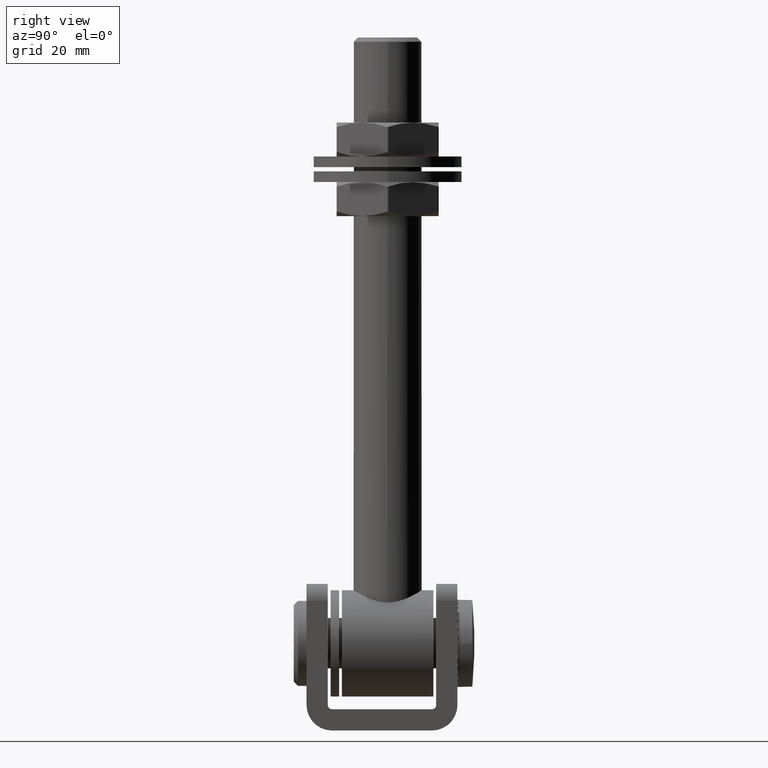
[diagram: clean part render]
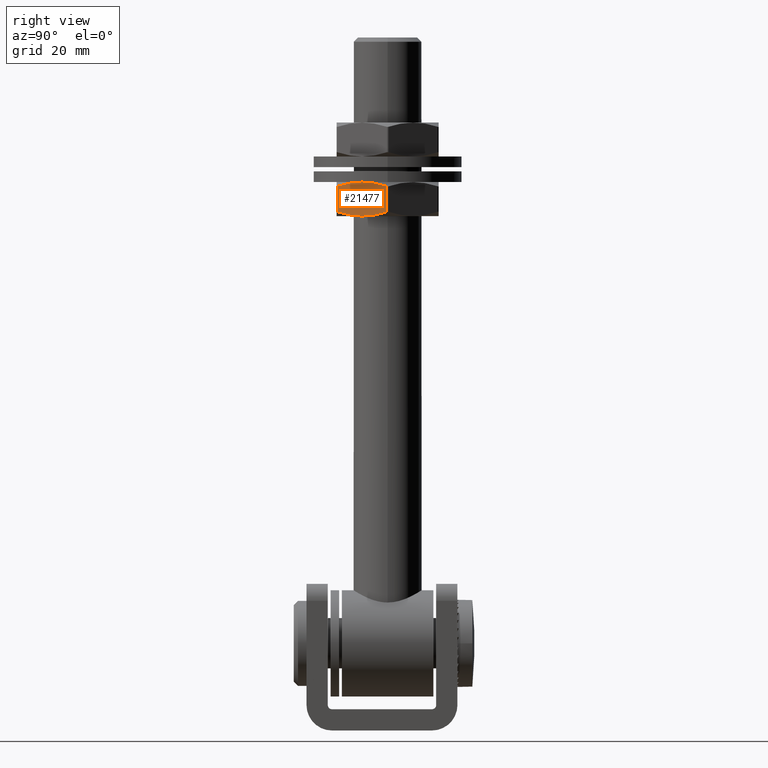
[diagram: same view with one face highlighted and labeled with its STEP entity id]
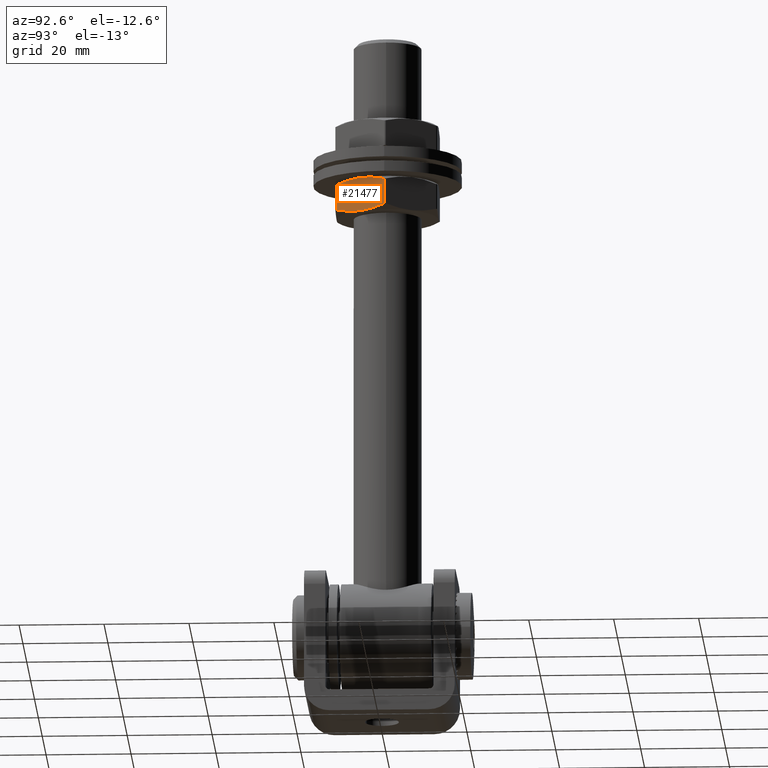
[diagram: same view with one face highlighted and labeled with its STEP entity id]
A machine part, right view. The second image highlights one B-rep face of the part: STEP entity #21477.
A second angle (auxiliary view) of the same face is appended — the face is thin or edge-on in the first view.
In plain terms, the highlighted planar face has unit normal (-0.866, 0.5, -0).
Its self-contained STEP definition (entity closure, byte-faithful):
#64 = DIRECTION ( 'NONE',  ( -7.395570986446863062E-32, 1.000000000000000000, 4.930380657631262477E-32 ) ) ;
#706 = DIRECTION ( 'NONE',  ( 7.395570986446863062E-32, -1.000000000000000000, -4.930380657631262477E-32 ) ) ;
#933 = CARTESIAN_POINT ( 'NONE',  ( 10.11082040635865376, 4.000000000000165201, 6.487545349982087650 ) ) ;
#1059 = ORIENTED_EDGE ( 'NONE', *, *, #21412, .T. ) ;
#1109 = EDGE_LOOP ( 'NONE', ( #1059, #16943, #4886, #14828, #10303, #13698 ) ) ;
#1771 = CARTESIAN_POINT ( 'NONE',  ( 10.39230484541297450, 4.000000000000003553, 5.999999999999852562 ) ) ;
#1833 = VERTEX_POINT ( 'NONE', #7449 ) ;
#1865 = CARTESIAN_POINT ( 'NONE',  ( 13.16874182127976134, 3.313954435900914763, 1.191070093785827622 ) ) ;
#2037 = DIRECTION ( 'NONE',  ( -0.8660254037844382635, -4.930380657631420123E-32, -0.5000000000000006661 ) ) ;
#2118 = VERTEX_POINT ( 'NONE', #5523 ) ;
#2446 = B_SPLINE_CURVE_WITH_KNOTS ( 'NONE', 3,
 ( #20539, #17107, #5284, #3383, #10192, #3466 ),
 .UNSPECIFIED., .F., .F.,
 ( 4, 2, 4 ),
 ( 0.0002976420579474735686, 0.003654043546377319304, 0.007010445034807165528 ),
 .UNSPECIFIED. ) ;
#3011 = VERTEX_POINT ( 'NONE', #15383 ) ;
#3383 = CARTESIAN_POINT ( 'NONE',  ( 9.268740651451105705, -3.906434174578529817, 7.946070269507098160 ) ) ;
#3466 = CARTESIAN_POINT ( 'NONE',  ( 10.39230484541296384, -4.000000000000003553, 5.999999999999877431 ) ) ;
#4886 = ORIENTED_EDGE ( 'NONE', *, *, #9350, .T. ) ;
#5184 = CARTESIAN_POINT ( 'NONE',  ( 10.95658457648159967, -3.976788126677650137, 5.022638836107818250 ) ) ;
#5284 = CARTESIAN_POINT ( 'NONE',  ( 8.163129901978846803, -3.562901251027212890, 9.861044260987355869 ) ) ;
#5523 = CARTESIAN_POINT ( 'NONE',  ( 10.39230484541297450, 4.000000000000003553, 5.999999999999852562 ) ) ;
#5628 = DIRECTION ( 'NONE',  ( -0.5000000000000006661, 1.824240843323626234E-30, 0.8660254037844382635 ) ) ;
#5816 = CARTESIAN_POINT ( 'NONE',  ( 8.990347189129618499, 3.820028020092934185, 8.428261890742929197 ) ) ;
#6616 = FACE_OUTER_BOUND ( 'NONE', #1109, .T. ) ;
#7063 = CARTESIAN_POINT ( 'NONE',  ( 10.39230484541296384, -4.000000000000003553, 5.999999999999877431 ) ) ;
#7449 = CARTESIAN_POINT ( 'NONE',  ( 13.71206889325364564, 3.010220883462255692, 0.2499999999994474975 ) ) ;
#7907 = VERTEX_POINT ( 'NONE', #21488 ) ;
#7917 = CARTESIAN_POINT ( 'NONE',  ( 9.268373994161228424, 3.886760395136575674, 7.946705338562133569 ) ) ;
#8022 = CARTESIAN_POINT ( 'NONE',  ( 7.072540797572774984, 3.010220883462366714, 11.74999999999972289 ) ) ;
#8358 = VECTOR ( 'NONE', #64, 1000.000000000000000 ) ;
#8474 = EDGE_CURVE ( 'NONE', #7907, #9288, #2446, .T. ) ;
#8601 = CARTESIAN_POINT ( 'NONE',  ( 10.95744704231395161, 4.000000000000163425, 5.021145001466394753 ) ) ;
#8897 = LINE ( 'NONE', #19498, #12981 ) ;
#9288 = VERTEX_POINT ( 'NONE', #17452 ) ;
#9350 = EDGE_CURVE ( 'NONE', #1833, #2118, #9713, .T. ) ;
#9713 = B_SPLINE_CURVE_WITH_KNOTS ( 'NONE', 3,
 ( #10475, #1865, #19033, #10392, #8601, #1771 ),
 .UNSPECIFIED., .F., .F.,
 ( 4, 2, 4 ),
 ( 0.0002976420579474606666, 0.003654043546377299789, 0.007010445034807139507 ),
 .UNSPECIFIED. ) ;
#9730 = CARTESIAN_POINT ( 'NONE',  ( 7.072540797572774984, 3.010220883462366714, 11.74999999999972289 ) ) ;
#10192 = CARTESIAN_POINT ( 'NONE',  ( 9.827162648512098642, -4.000000000000160760, 6.978854998533386755 ) ) ;
#10303 = ORIENTED_EDGE ( 'NONE', *, *, #14089, .T. ) ;
#10392 = CARTESIAN_POINT ( 'NONE',  ( 11.51586903937495165, 3.906434174578533369, 4.053929730492663808 ) ) ;
#10411 = CARTESIAN_POINT ( 'NONE',  ( 13.71206889325331524, 4.000000000000003553, 0.2499999999999863443 ) ) ;
#10475 = CARTESIAN_POINT ( 'NONE',  ( 13.71206889325364564, 3.010220883462255692, 0.2499999999994474975 ) ) ;
#11020 = CARTESIAN_POINT ( 'NONE',  ( 8.161051184807535108, 3.562063013139090462, 9.864644704742634218 ) ) ;
#11470 = EDGE_CURVE ( 'NONE', #2118, #12506, #21042, .T. ) ;
#11887 = LINE ( 'NONE', #10411, #8358 ) ;
#12049 = CARTESIAN_POINT ( 'NONE',  ( 12.62355850601854179, -3.562063013139089129, 2.135355295257103325 ) ) ;
#12450 = PLANE ( 'NONE',  #18579 ) ;
#12506 = VERTEX_POINT ( 'NONE', #8022 ) ;
#12981 = VECTOR ( 'NONE', #706, 1000.000000000000000 ) ;
#13698 = ORIENTED_EDGE ( 'NONE', *, *, #8474, .T. ) ;
#14089 = EDGE_CURVE ( 'NONE', #12506, #7907, #8897, .T. ) ;
#14107 = CARTESIAN_POINT ( 'NONE',  ( 6.928203230275364888, 4.000000000000003553, 11.99999999999971578 ) ) ;
#14828 = ORIENTED_EDGE ( 'NONE', *, *, #11470, .T. ) ;
#15383 = CARTESIAN_POINT ( 'NONE',  ( 13.71206889325331879, -3.010220883462366714, 0.2499999999999880651 ) ) ;
#15459 = CARTESIAN_POINT ( 'NONE',  ( 13.71206889325331879, -3.010220883462366714, 0.2499999999999880651 ) ) ;
#15856 = EDGE_CURVE ( 'NONE', #3011, #1833, #11887, .T. ) ;
#16567 = CARTESIAN_POINT ( 'NONE',  ( 10.39230484541297450, 4.000000000000003553, 5.999999999999852562 ) ) ;
#16943 = ORIENTED_EDGE ( 'NONE', *, *, #15856, .T. ) ;
#17107 = CARTESIAN_POINT ( 'NONE',  ( 7.615867869546321778, -3.313954435900921869, 10.80892990621389949 ) ) ;
#17274 = CARTESIAN_POINT ( 'NONE',  ( 11.51623569666482183, -3.886760395136575674, 4.053294661437640833 ) ) ;
#17452 = CARTESIAN_POINT ( 'NONE',  ( 10.39230484541296384, -4.000000000000003553, 5.999999999999877431 ) ) ;
#18478 = B_SPLINE_CURVE_WITH_KNOTS ( 'NONE', 3,
 ( #7063, #20803, #5184, #17274, #19000, #12049, #19157, #15459 ),
 .UNSPECIFIED., .F., .F.,
 ( 4, 2, 2, 4 ),
 ( 0.007010445034807165528, 0.008682192066603540426, 0.01035393909839991446, 0.01369743316199266078 ),
 .UNSPECIFIED. ) ;
#18522 = CARTESIAN_POINT ( 'NONE',  ( 9.828025114344443480, 3.976788126677650137, 6.977361163891972140 ) ) ;
#18579 = AXIS2_PLACEMENT_3D ( 'NONE', #14107, #2037, #5628 ) ;
#19000 = CARTESIAN_POINT ( 'NONE',  ( 11.79426250169643886, -3.820028020092936405, 3.571738109256837213 ) ) ;
#19033 = CARTESIAN_POINT ( 'NONE',  ( 12.62147978884722832, 3.562901251027212002, 2.138955739012384338 ) ) ;
#19157 = CARTESIAN_POINT ( 'NONE',  ( 13.17005630627450152, -3.313219605597615747, 1.188793338989160286 ) ) ;
#19498 = CARTESIAN_POINT ( 'NONE',  ( 7.072540797572774984, 4.000000000000003553, 11.74999999999972289 ) ) ;
#20539 = CARTESIAN_POINT ( 'NONE',  ( 7.072540797572454352, -3.010220883462200181, 11.75000000000025757 ) ) ;
#20803 = CARTESIAN_POINT ( 'NONE',  ( 10.67378928446738584, -4.000000000000164313, 5.512454650017715174 ) ) ;
#21042 = B_SPLINE_CURVE_WITH_KNOTS ( 'NONE', 3,
 ( #16567, #933, #18522, #7917, #5816, #11020, #21931, #9730 ),
 .UNSPECIFIED., .F., .F.,
 ( 4, 2, 2, 4 ),
 ( 0.007010445034807139507, 0.008682192066603521344, 0.01035393909839989884, 0.01369743316199265731 ),
 .UNSPECIFIED. ) ;
#21412 = EDGE_CURVE ( 'NONE', #9288, #3011, #18478, .T. ) ;
#21477 = ADVANCED_FACE ( 'NONE', ( #6616 ), #12450, .F. ) ;
#21488 = CARTESIAN_POINT ( 'NONE',  ( 7.072540797572454352, -3.010220883462200181, 11.75000000000025757 ) ) ;
#21931 = CARTESIAN_POINT ( 'NONE',  ( 7.614553384551582482, 3.313219605597621520, 10.81120666101056393 ) ) ;